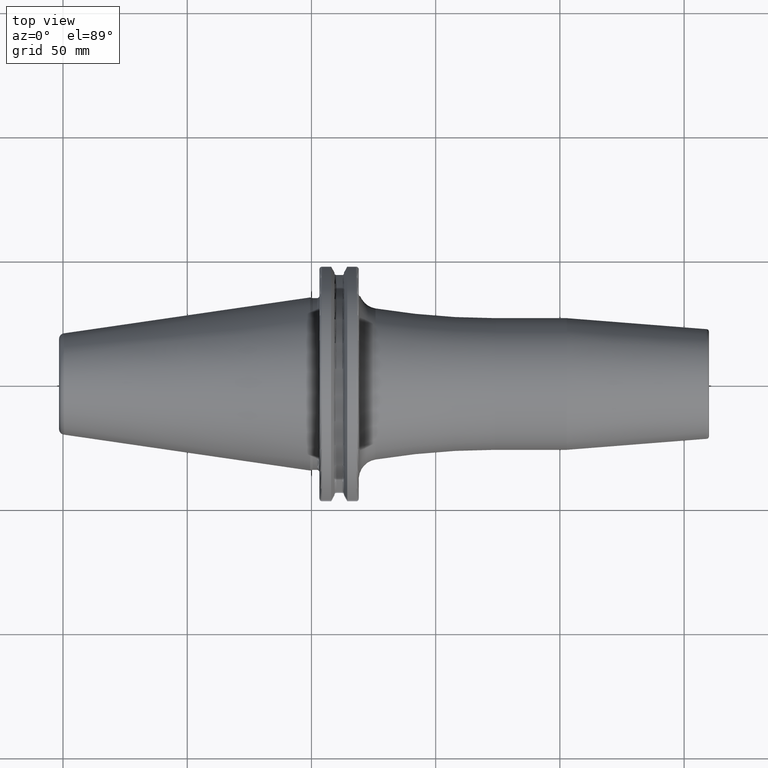
[diagram: clean part render]
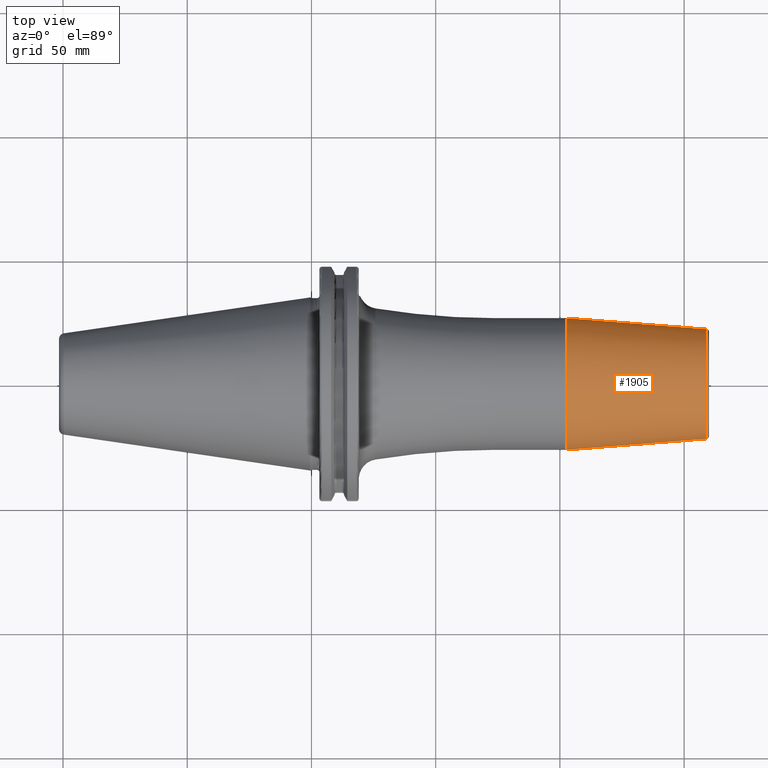
[diagram: same view with one face highlighted and labeled with its STEP entity id]
A machine part, top view. The second image highlights one B-rep face of the part: STEP entity #1905.
In plain terms, the highlighted conical surface has half-angle 4.5 deg.
Its self-contained STEP definition (entity closure, byte-faithful):
#272=CARTESIAN_POINT('',(1.028220786872E2,0.E0,0.E0));
#273=DIRECTION('',(1.E0,0.E0,0.E0));
#274=DIRECTION('',(0.E0,1.E0,0.E0));
#275=AXIS2_PLACEMENT_3D('',#272,#273,#274);
#277=CARTESIAN_POINT('',(1.590784590957E2,0.E0,0.E0));
#278=DIRECTION('',(-1.E0,0.E0,0.E0));
#279=DIRECTION('',(0.E0,-1.E0,0.E0));
#280=AXIS2_PLACEMENT_3D('',#277,#278,#279);
#297=DIRECTION('',(-9.969173337331E-1,7.845909572785E-2,2.372501278099E-14));
#298=VECTOR('',#297,5.643033630266E1);
#299=CARTESIAN_POINT('',(1.590784590957E2,2.207252684207E1,
-1.335565135998E-12));
#300=LINE('',#299,#298);
#301=DIRECTION('',(-9.969173337331E-1,-7.845909572785E-2,-2.371303737418E-14));
#302=VECTOR('',#301,5.643033630266E1);
#303=CARTESIAN_POINT('',(1.590784590957E2,-2.207252684207E1,
1.334889359765E-12));
#304=LINE('',#303,#302);
#1489=CARTESIAN_POINT('',(1.028220786872E2,2.65E1,0.E0));
#1490=CARTESIAN_POINT('',(1.028220786872E2,-2.65E1,0.E0));
#1491=VERTEX_POINT('',#1489);
#1492=VERTEX_POINT('',#1490);
#1493=CARTESIAN_POINT('',(1.590784590957E2,2.207252684207E1,0.E0));
#1494=CARTESIAN_POINT('',(1.590784590957E2,-2.207252684207E1,0.E0));
#1495=VERTEX_POINT('',#1493);
#1496=VERTEX_POINT('',#1494);
#1891=CARTESIAN_POINT('',(1.309502688915E2,0.E0,0.E0));
#1892=DIRECTION('',(-1.E0,0.E0,0.E0));
#1893=DIRECTION('',(0.E0,1.E0,0.E0));
#1894=AXIS2_PLACEMENT_3D('',#1891,#1892,#1893);
#1895=CONICAL_SURFACE('',#1894,2.428626342104E1,4.5E0);
#1897=ORIENTED_EDGE('',*,*,#1896,.F.);
#1899=ORIENTED_EDGE('',*,*,#1898,.T.);
#1900=ORIENTED_EDGE('',*,*,#1885,.F.);
#1902=ORIENTED_EDGE('',*,*,#1901,.F.);
#1903=EDGE_LOOP('',(#1897,#1899,#1900,#1902));
#1904=FACE_OUTER_BOUND('',#1903,.F.);
#1905=ADVANCED_FACE('',(#1904),#1895,.T.);
#276=CIRCLE('',#275,2.65E1);
#281=CIRCLE('',#280,2.207252684207E1);
#1885=EDGE_CURVE('',#1491,#1492,#276,.T.);
#1896=EDGE_CURVE('',#1496,#1495,#281,.T.);
#1898=EDGE_CURVE('',#1496,#1492,#304,.T.);
#1901=EDGE_CURVE('',#1495,#1491,#300,.T.);